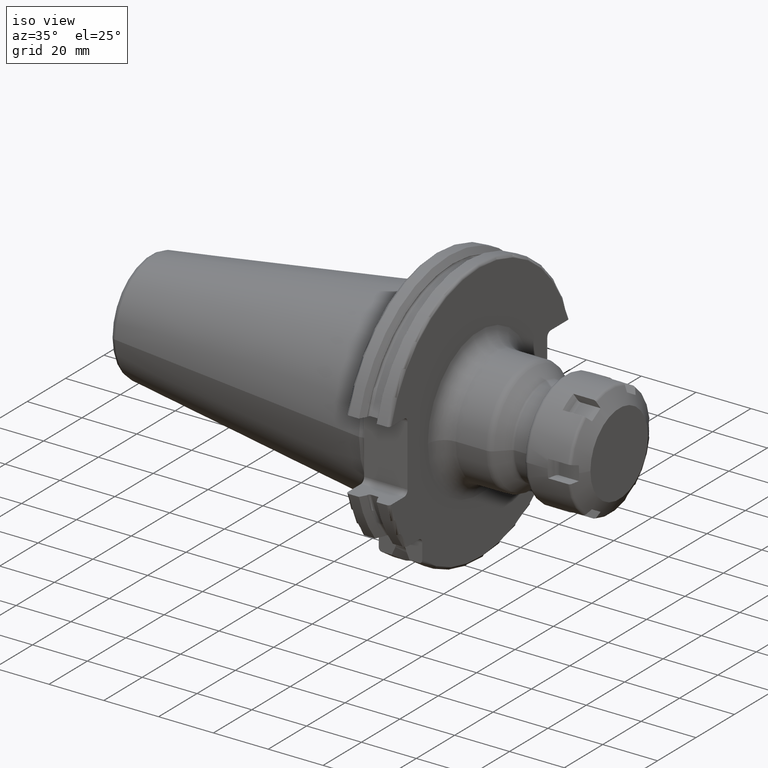
[diagram: clean part render]
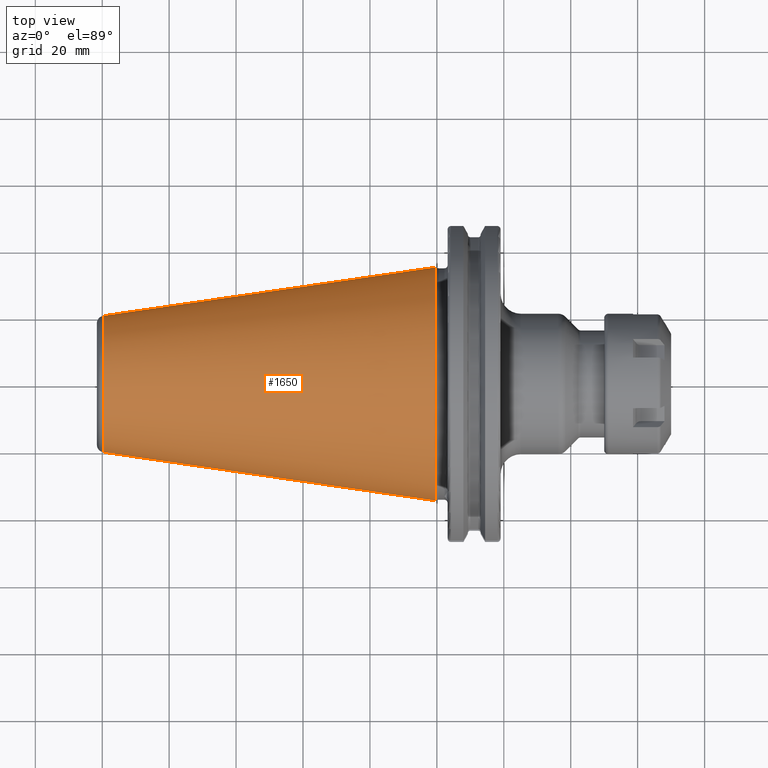
[diagram: tour spotlight — one face highlighted and labeled with its STEP entity id]
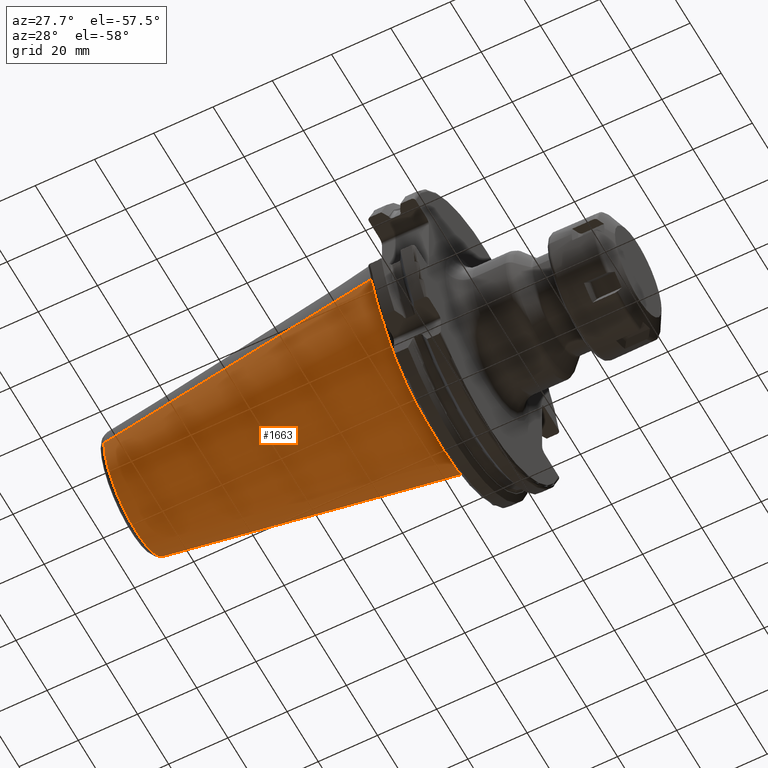
[diagram: tour spotlight — one face highlighted and labeled with its STEP entity id]
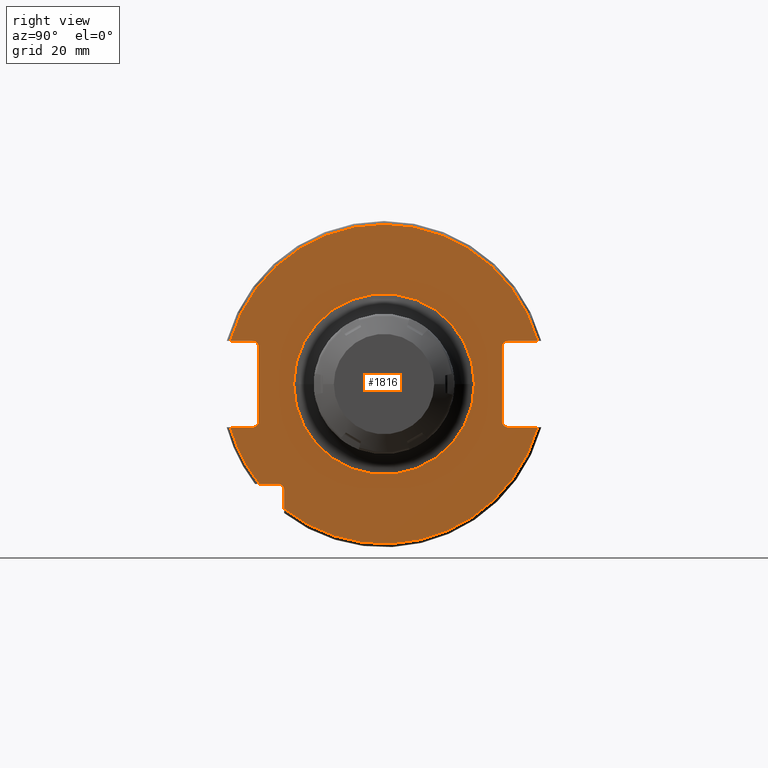
[diagram: tour spotlight — one face highlighted and labeled with its STEP entity id]
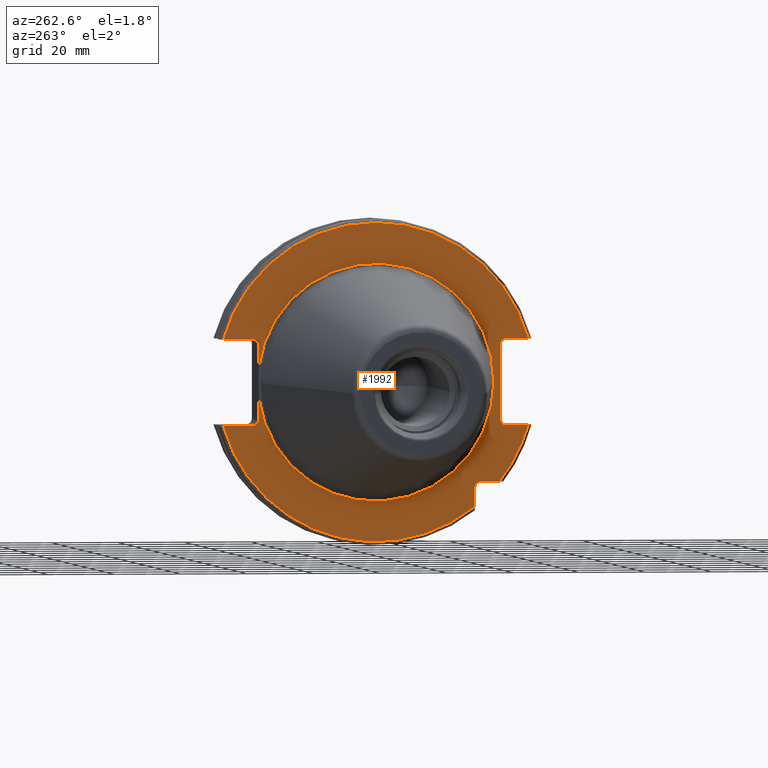
[diagram: tour spotlight — one face highlighted and labeled with its STEP entity id]
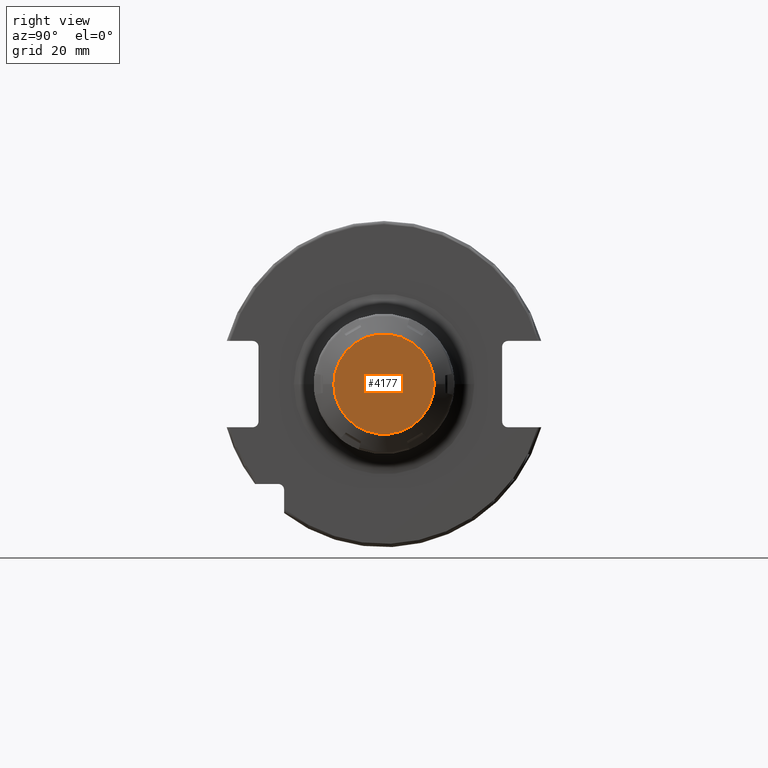
[diagram: tour spotlight — one face highlighted and labeled with its STEP entity id]
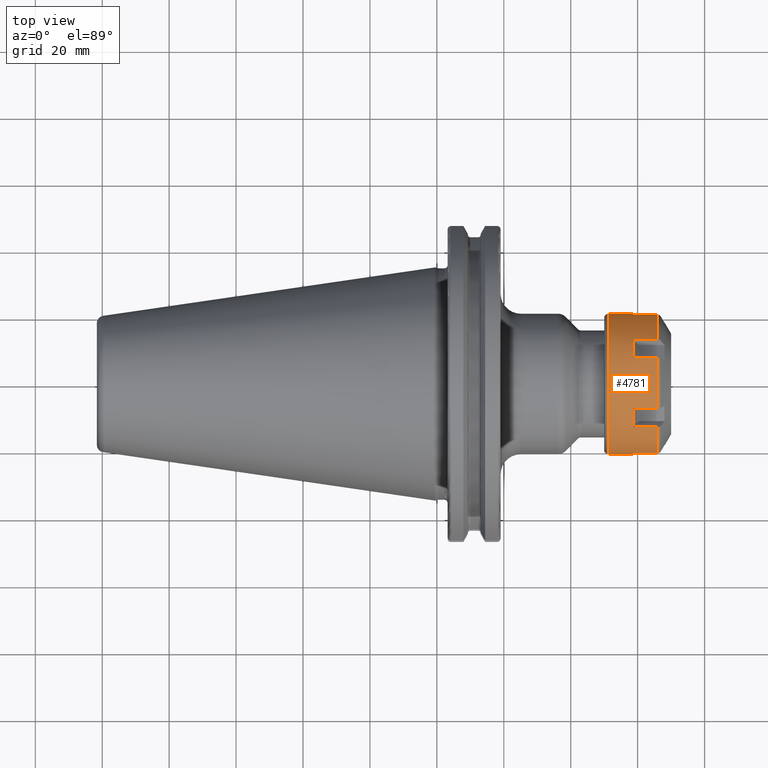
[diagram: tour spotlight — one face highlighted and labeled with its STEP entity id]
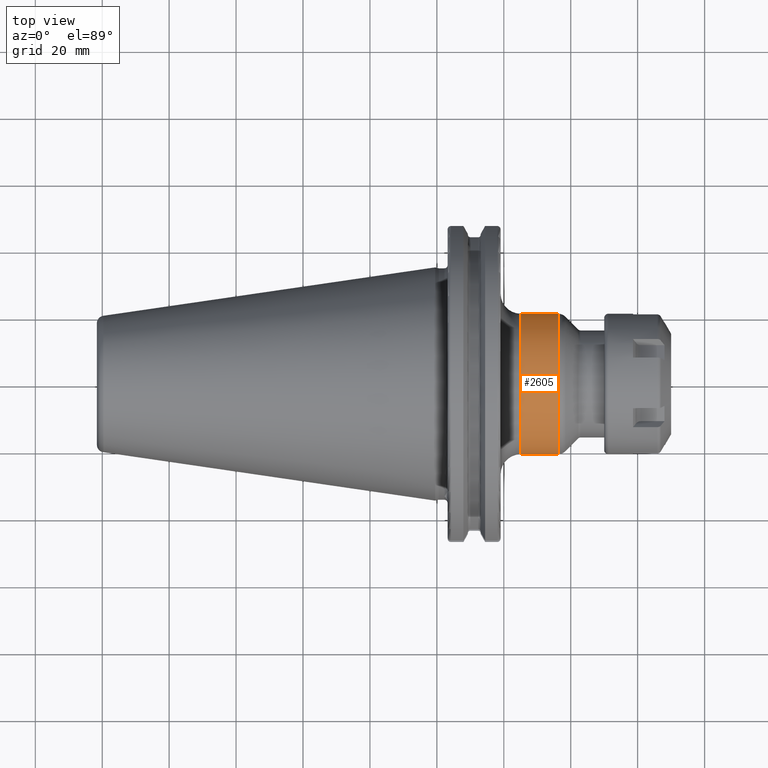
[diagram: tour spotlight — one face highlighted and labeled with its STEP entity id]
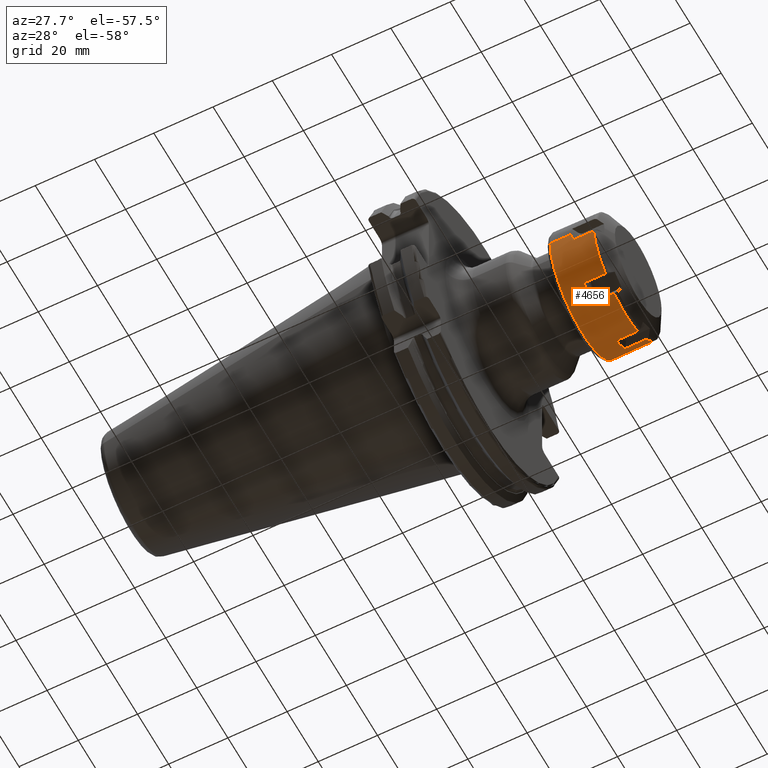
[diagram: tour spotlight — one face highlighted and labeled with its STEP entity id]
A machine part: a face-by-face anatomy tour. The part has 147 B-rep faces; the first image is the clean iso view, then the 8 largest visible faces are spotlighted one at a time (largest first), each with its STEP entity span.

Face 1 — top view, entity #1650. In plain terms, the highlighted conical surface has half-angle 8.298 deg.
Definition (entity closure, byte-faithful):
#37=CARTESIAN_POINT('',(-9.967471700563E1,0.E0,0.E0));
#38=DIRECTION('',(1.E0,0.E0,0.E0));
#39=DIRECTION('',(0.E0,1.E0,0.E0));
#40=AXIS2_PLACEMENT_3D('',#37,#38,#39);
#42=CARTESIAN_POINT('',(-4.896823332305E-1,0.E0,0.E0));
#43=DIRECTION('',(1.E0,0.E0,0.E0));
#44=DIRECTION('',(0.E0,1.E0,0.E0));
#45=AXIS2_PLACEMENT_3D('',#42,#43,#44);
#47=DIRECTION('',(-9.895312636440E-1,-1.443186691705E-1,0.E0));
#48=VECTOR('',#47,1.002343617797E2);
#49=CARTESIAN_POINT('',(-4.896823332305E-1,3.485358204157E1,0.E0));
#50=LINE('',#49,#48);
#51=DIRECTION('',(-9.895312636440E-1,1.443186691705E-1,0.E0));
#52=VECTOR('',#51,1.002343617797E2);
#53=CARTESIAN_POINT('',(-4.896823332305E-1,-3.485358204157E1,0.E0));
#54=LINE('',#53,#52);
#1318=CARTESIAN_POINT('',(-9.967471700563E1,2.038789234437E1,0.E0));
#1320=VERTEX_POINT('',#1318);
#1322=CARTESIAN_POINT('',(-9.967471700563E1,-2.038789234437E1,0.E0));
#1324=VERTEX_POINT('',#1322);
#1386=CARTESIAN_POINT('',(-4.896823332305E-1,3.485358204157E1,0.E0));
#1387=VERTEX_POINT('',#1386);
#1388=CARTESIAN_POINT('',(-4.896823332305E-1,-3.485358204157E1,0.E0));
#1389=VERTEX_POINT('',#1388);
#1636=CARTESIAN_POINT('',(-5.008219966943E1,0.E0,0.E0));
#1637=DIRECTION('',(1.E0,0.E0,0.E0));
#1638=DIRECTION('',(0.E0,-1.E0,0.E0));
#1639=AXIS2_PLACEMENT_3D('',#1636,#1637,#1638);
#1640=CONICAL_SURFACE('',#1639,2.762073719297E1,8.297826828206E0);
#1642=ORIENTED_EDGE('',*,*,#1641,.F.);
#1644=ORIENTED_EDGE('',*,*,#1643,.T.);
#1646=ORIENTED_EDGE('',*,*,#1645,.T.);
#1647=ORIENTED_EDGE('',*,*,#1629,.F.);
#1648=EDGE_LOOP('',(#1642,#1644,#1646,#1647));
#1649=FACE_OUTER_BOUND('',#1648,.F.);
#1650=ADVANCED_FACE('',(#1649),#1640,.T.);
#41=CIRCLE('',#40,2.038789234437E1);
#46=CIRCLE('',#45,3.485358204157E1);
#1629=EDGE_CURVE('',#1320,#1324,#41,.T.);
#1641=EDGE_CURVE('',#1387,#1320,#50,.T.);
#1643=EDGE_CURVE('',#1387,#1389,#46,.T.);
#1645=EDGE_CURVE('',#1389,#1324,#54,.T.);

Face 2 — auxiliary view, entity #1663. In plain terms, the highlighted conical surface has half-angle 8.298 deg.
Definition (entity closure, byte-faithful):
#32=CARTESIAN_POINT('',(-9.967471700563E1,0.E0,0.E0));
#33=DIRECTION('',(-1.E0,0.E0,0.E0));
#34=DIRECTION('',(0.E0,1.E0,0.E0));
#35=AXIS2_PLACEMENT_3D('',#32,#33,#34);
#47=DIRECTION('',(-9.895312636440E-1,-1.443186691705E-1,0.E0));
#48=VECTOR('',#47,1.002343617797E2);
#49=CARTESIAN_POINT('',(-4.896823332305E-1,3.485358204157E1,0.E0));
#50=LINE('',#49,#48);
#51=DIRECTION('',(-9.895312636440E-1,1.443186691705E-1,0.E0));
#52=VECTOR('',#51,1.002343617797E2);
#53=CARTESIAN_POINT('',(-4.896823332305E-1,-3.485358204157E1,0.E0));
#54=LINE('',#53,#52);
#55=CARTESIAN_POINT('',(-4.896823332305E-1,0.E0,0.E0));
#56=DIRECTION('',(-1.E0,0.E0,0.E0));
#57=DIRECTION('',(0.E0,1.E0,0.E0));
#58=AXIS2_PLACEMENT_3D('',#55,#56,#57);
#1318=CARTESIAN_POINT('',(-9.967471700563E1,2.038789234437E1,0.E0));
#1320=VERTEX_POINT('',#1318);
#1322=CARTESIAN_POINT('',(-9.967471700563E1,-2.038789234437E1,0.E0));
#1324=VERTEX_POINT('',#1322);
#1386=CARTESIAN_POINT('',(-4.896823332305E-1,3.485358204157E1,0.E0));
#1387=VERTEX_POINT('',#1386);
#1388=CARTESIAN_POINT('',(-4.896823332305E-1,-3.485358204157E1,0.E0));
#1389=VERTEX_POINT('',#1388);
#1651=CARTESIAN_POINT('',(-5.008219966943E1,0.E0,0.E0));
#1652=DIRECTION('',(1.E0,0.E0,0.E0));
#1653=DIRECTION('',(0.E0,-1.E0,0.E0));
#1654=AXIS2_PLACEMENT_3D('',#1651,#1652,#1653);
#1655=CONICAL_SURFACE('',#1654,2.762073719297E1,8.297826828206E0);
#1656=ORIENTED_EDGE('',*,*,#1641,.T.);
#1657=ORIENTED_EDGE('',*,*,#1618,.T.);
#1658=ORIENTED_EDGE('',*,*,#1645,.F.);
#1660=ORIENTED_EDGE('',*,*,#1659,.F.);
#1661=EDGE_LOOP('',(#1656,#1657,#1658,#1660));
#1662=FACE_OUTER_BOUND('',#1661,.F.);
#1663=ADVANCED_FACE('',(#1662),#1655,.T.);
#36=CIRCLE('',#35,2.038789234437E1);
#59=CIRCLE('',#58,3.485358204157E1);
#1618=EDGE_CURVE('',#1320,#1324,#36,.T.);
#1641=EDGE_CURVE('',#1387,#1320,#50,.T.);
#1645=EDGE_CURVE('',#1389,#1324,#54,.T.);
#1659=EDGE_CURVE('',#1387,#1389,#59,.T.);

Face 3 — right view, entity #1816. In plain terms, the highlighted planar face has unit normal (1, 0, 0).
Definition (entity closure, byte-faithful):
#130=CARTESIAN_POINT('',(1.905E1,3.705E1,1.115E1));
#131=DIRECTION('',(-1.E0,0.E0,0.E0));
#132=DIRECTION('',(0.E0,-1.E0,0.E0));
#133=AXIS2_PLACEMENT_3D('',#130,#131,#132);
#140=DIRECTION('',(0.E0,0.E0,1.E0));
#141=VECTOR('',#140,2.23E1);
#142=CARTESIAN_POINT('',(1.905E1,-3.75E1,-1.115E1));
#143=LINE('',#142,#141);
#144=DIRECTION('',(0.E0,1.E0,0.E0));
#145=VECTOR('',#144,6.711493733886E0);
#146=CARTESIAN_POINT('',(1.905E1,-4.596149373389E1,1.29E1));
#147=LINE('',#146,#145);
#148=DIRECTION('',(0.E0,-1.E0,0.E0));
#149=VECTOR('',#148,8.911493733886E0);
#150=CARTESIAN_POINT('',(1.905E1,4.596149373389E1,1.29E1));
#151=LINE('',#150,#149);
#152=DIRECTION('',(0.E0,0.E0,-1.E0));
#153=VECTOR('',#152,2.23E1);
#154=CARTESIAN_POINT('',(1.905E1,3.53E1,1.115E1));
#155=LINE('',#154,#153);
#156=DIRECTION('',(0.E0,-1.E0,0.E0));
#157=VECTOR('',#156,8.911493733886E0);
#158=CARTESIAN_POINT('',(1.905E1,4.596149373389E1,-1.29E1));
#159=LINE('',#158,#157);
#160=DIRECTION('',(0.E0,0.E0,1.E0));
#161=VECTOR('',#160,5.653810627237E0);
#162=CARTESIAN_POINT('',(1.905E1,-2.985E1,-3.725381062724E1));
#163=LINE('',#162,#161);
#164=DIRECTION('',(0.E0,-1.E0,0.E0));
#165=VECTOR('',#164,5.653810627237E0);
#166=CARTESIAN_POINT('',(1.905E1,-3.16E1,-2.985E1));
#167=LINE('',#166,#165);
#168=DIRECTION('',(0.E0,1.E0,0.E0));
#169=VECTOR('',#168,6.711493733886E0);
#170=CARTESIAN_POINT('',(1.905E1,-4.596149373389E1,-1.29E1));
#171=LINE('',#170,#169);
#172=CARTESIAN_POINT('',(1.905E1,0.E0,0.E0));
#173=DIRECTION('',(1.E0,0.E0,0.E0));
#174=DIRECTION('',(0.E0,-1.E0,0.E0));
#175=AXIS2_PLACEMENT_3D('',#172,#173,#174);
#177=CARTESIAN_POINT('',(1.905E1,0.E0,0.E0));
#178=DIRECTION('',(1.E0,0.E0,0.E0));
#179=DIRECTION('',(0.E0,1.E0,0.E0));
#180=AXIS2_PLACEMENT_3D('',#177,#178,#179);
#190=CARTESIAN_POINT('',(1.905E1,-3.925E1,-1.115E1));
#191=DIRECTION('',(-1.E0,0.E0,0.E0));
#192=DIRECTION('',(0.E0,1.E0,0.E0));
#193=AXIS2_PLACEMENT_3D('',#190,#191,#192);
#213=CARTESIAN_POINT('',(1.905E1,4.596149373389E1,-1.29E1));
#225=CARTESIAN_POINT('',(1.905E1,0.E0,0.E0));
#226=DIRECTION('',(-1.E0,0.E0,0.E0));
#227=DIRECTION('',(0.E0,9.627964123359E-1,-2.702278083268E-1));
#228=AXIS2_PLACEMENT_3D('',#225,#226,#227);
#230=CARTESIAN_POINT('',(1.905E1,-4.596149373389E1,-1.29E1));
#241=CARTESIAN_POINT('',(1.905E1,0.E0,0.E0));
#242=DIRECTION('',(-1.E0,0.E0,0.E0));
#243=DIRECTION('',(0.E0,-7.803888060170E-1,-6.252945797329E-1));
#244=AXIS2_PLACEMENT_3D('',#241,#242,#243);
#255=CARTESIAN_POINT('',(1.905E1,-3.725381062724E1,-2.985E1));
#261=CARTESIAN_POINT('',(1.905E1,3.705E1,-1.115E1));
#262=DIRECTION('',(-1.E0,0.E0,0.E0));
#263=DIRECTION('',(0.E0,0.E0,-1.E0));
#264=AXIS2_PLACEMENT_3D('',#261,#262,#263);
#326=CARTESIAN_POINT('',(1.905E1,-3.925E1,1.115E1));
#327=DIRECTION('',(-1.E0,0.E0,0.E0));
#328=DIRECTION('',(0.E0,0.E0,1.E0));
#329=AXIS2_PLACEMENT_3D('',#326,#327,#328);
#367=CARTESIAN_POINT('',(1.905E1,4.596149373389E1,1.29E1));
#378=CARTESIAN_POINT('',(1.905E1,0.E0,0.E0));
#379=DIRECTION('',(1.E0,0.E0,0.E0));
#380=DIRECTION('',(0.E0,9.627964123359E-1,2.702278083268E-1));
#381=AXIS2_PLACEMENT_3D('',#378,#379,#380);
#392=CARTESIAN_POINT('',(1.905E1,-4.596149373389E1,1.29E1));
#741=CARTESIAN_POINT('',(1.905E1,-3.16E1,-3.16E1));
#742=DIRECTION('',(-1.E0,0.E0,0.E0));
#743=DIRECTION('',(0.E0,0.E0,1.E0));
#744=AXIS2_PLACEMENT_3D('',#741,#742,#743);
#1459=VERTEX_POINT('',#367);
#1460=VERTEX_POINT('',#392);
#1463=VERTEX_POINT('',#213);
#1464=VERTEX_POINT('',#230);
#1483=CARTESIAN_POINT('',(1.905E1,-2.985E1,-3.725381062724E1));
#1484=VERTEX_POINT('',#1483);
#1491=CARTESIAN_POINT('',(1.905E1,-3.75E1,-1.115E1));
#1493=VERTEX_POINT('',#1491);
#1495=CARTESIAN_POINT('',(1.905E1,-3.925E1,-1.29E1));
#1497=VERTEX_POINT('',#1495);
#1499=CARTESIAN_POINT('',(1.905E1,-3.925E1,1.29E1));
#1501=VERTEX_POINT('',#1499);
#1503=CARTESIAN_POINT('',(1.905E1,-3.75E1,1.115E1));
#1505=VERTEX_POINT('',#1503);
#1507=CARTESIAN_POINT('',(1.905E1,3.53E1,1.115E1));
#1509=VERTEX_POINT('',#1507);
#1511=CARTESIAN_POINT('',(1.905E1,3.705E1,1.29E1));
#1513=VERTEX_POINT('',#1511);
#1515=CARTESIAN_POINT('',(1.905E1,3.705E1,-1.29E1));
#1517=VERTEX_POINT('',#1515);
#1519=CARTESIAN_POINT('',(1.905E1,3.53E1,-1.115E1));
#1521=VERTEX_POINT('',#1519);
#1523=CARTESIAN_POINT('',(1.905E1,-3.16E1,-2.985E1));
#1524=CARTESIAN_POINT('',(1.905E1,-2.985E1,-3.16E1));
#1525=VERTEX_POINT('',#1523);
#1526=VERTEX_POINT('',#1524);
#1547=CARTESIAN_POINT('',(1.905E1,-2.7E1,0.E0));
#1548=CARTESIAN_POINT('',(1.905E1,2.7E1,0.E0));
#1549=VERTEX_POINT('',#1547);
#1550=VERTEX_POINT('',#1548);
#1588=VERTEX_POINT('',#255);
#1773=CARTESIAN_POINT('',(1.905E1,0.E0,0.E0));
#1774=DIRECTION('',(1.E0,0.E0,0.E0));
#1775=DIRECTION('',(0.E0,-1.E0,0.E0));
#1776=AXIS2_PLACEMENT_3D('',#1773,#1774,#1775);
#1777=PLANE('',#1776);
#1779=ORIENTED_EDGE('',*,*,#1778,.T.);
#1781=ORIENTED_EDGE('',*,*,#1780,.F.);
#1783=ORIENTED_EDGE('',*,*,#1782,.F.);
#1785=ORIENTED_EDGE('',*,*,#1784,.F.);
#1787=ORIENTED_EDGE('',*,*,#1786,.T.);
#1788=ORIENTED_EDGE('',*,*,#1764,.F.);
#1789=ORIENTED_EDGE('',*,*,#1753,.T.);
#1791=ORIENTED_EDGE('',*,*,#1790,.F.);
#1793=ORIENTED_EDGE('',*,*,#1792,.F.);
#1795=ORIENTED_EDGE('',*,*,#1794,.T.);
#1797=ORIENTED_EDGE('',*,*,#1796,.T.);
#1799=ORIENTED_EDGE('',*,*,#1798,.F.);
#1801=ORIENTED_EDGE('',*,*,#1800,.T.);
#1803=ORIENTED_EDGE('',*,*,#1802,.T.);
#1805=ORIENTED_EDGE('',*,*,#1804,.T.);
#1807=ORIENTED_EDGE('',*,*,#1806,.F.);
#1808=EDGE_LOOP('',(#1779,#1781,#1783,#1785,#1787,#1788,#1789,#1791,#1793,#1795,
#1797,#1799,#1801,#1803,#1805,#1807));
#1809=FACE_OUTER_BOUND('',#1808,.F.);
#1811=ORIENTED_EDGE('',*,*,#1810,.T.);
#1813=ORIENTED_EDGE('',*,*,#1812,.T.);
#1814=EDGE_LOOP('',(#1811,#1813));
#1815=FACE_BOUND('',#1814,.F.);
#1816=ADVANCED_FACE('',(#1809,#1815),#1777,.T.);
#134=CIRCLE('',#133,1.75E0);
#176=CIRCLE('',#175,2.7E1);
#181=CIRCLE('',#180,2.7E1);
#194=CIRCLE('',#193,1.75E0);
#229=CIRCLE('',#228,4.77375E1);
#245=CIRCLE('',#244,4.77375E1);
#265=CIRCLE('',#264,1.75E0);
#330=CIRCLE('',#329,1.75E0);
#382=CIRCLE('',#381,4.77375E1);
#745=CIRCLE('',#744,1.75E0);
#1753=EDGE_CURVE('',#1509,#1521,#155,.T.);
#1764=EDGE_CURVE('',#1509,#1513,#134,.T.);
#1778=EDGE_CURVE('',#1493,#1505,#143,.T.);
#1780=EDGE_CURVE('',#1501,#1505,#330,.T.);
#1782=EDGE_CURVE('',#1460,#1501,#147,.T.);
#1784=EDGE_CURVE('',#1459,#1460,#382,.T.);
#1786=EDGE_CURVE('',#1459,#1513,#151,.T.);
#1790=EDGE_CURVE('',#1517,#1521,#265,.T.);
#1792=EDGE_CURVE('',#1463,#1517,#159,.T.);
#1794=EDGE_CURVE('',#1463,#1484,#229,.T.);
#1796=EDGE_CURVE('',#1484,#1526,#163,.T.);
#1798=EDGE_CURVE('',#1525,#1526,#745,.T.);
#1800=EDGE_CURVE('',#1525,#1588,#167,.T.);
#1802=EDGE_CURVE('',#1588,#1464,#245,.T.);
#1804=EDGE_CURVE('',#1464,#1497,#171,.T.);
#1806=EDGE_CURVE('',#1493,#1497,#194,.T.);
#1810=EDGE_CURVE('',#1549,#1550,#176,.T.);
#1812=EDGE_CURVE('',#1550,#1549,#181,.T.);

Face 4 — auxiliary view, entity #1992. In plain terms, the highlighted planar face has unit normal (1, 0, 0).
Definition (entity closure, byte-faithful):
#105=CARTESIAN_POINT('',(3.2E0,3.53E1,-4.414818795828E0));
#117=CARTESIAN_POINT('',(3.2E0,0.E0,0.E0));
#118=DIRECTION('',(-1.E0,0.E0,0.E0));
#119=DIRECTION('',(0.E0,9.922698524245E-1,-1.240989120402E-1));
#120=AXIS2_PLACEMENT_3D('',#117,#118,#119);
#135=CARTESIAN_POINT('',(3.2E0,3.705E1,1.115E1));
#136=DIRECTION('',(1.E0,0.E0,0.E0));
#137=DIRECTION('',(0.E0,0.E0,1.E0));
#138=AXIS2_PLACEMENT_3D('',#135,#136,#137);
#195=CARTESIAN_POINT('',(3.2E0,-3.925E1,-1.115E1));
#196=DIRECTION('',(1.E0,0.E0,0.E0));
#197=DIRECTION('',(0.E0,0.E0,-1.E0));
#198=AXIS2_PLACEMENT_3D('',#195,#196,#197);
#266=CARTESIAN_POINT('',(3.2E0,3.705E1,-1.115E1));
#267=DIRECTION('',(1.E0,0.E0,0.E0));
#268=DIRECTION('',(0.E0,-1.E0,0.E0));
#269=AXIS2_PLACEMENT_3D('',#266,#267,#268);
#271=DIRECTION('',(0.E0,1.E0,0.E0));
#272=VECTOR('',#271,6.711493733886E0);
#273=CARTESIAN_POINT('',(3.2E0,-4.596149373389E1,1.29E1));
#274=LINE('',#273,#272);
#275=DIRECTION('',(0.E0,0.E0,1.E0));
#276=VECTOR('',#275,2.23E1);
#277=CARTESIAN_POINT('',(3.2E0,-3.75E1,-1.115E1));
#278=LINE('',#277,#276);
#279=DIRECTION('',(0.E0,1.E0,0.E0));
#280=VECTOR('',#279,6.711493733886E0);
#281=CARTESIAN_POINT('',(3.2E0,-4.596149373389E1,-1.29E1));
#282=LINE('',#281,#280);
#283=CARTESIAN_POINT('',(3.2E0,0.E0,0.E0));
#284=DIRECTION('',(-1.E0,0.E0,0.E0));
#285=DIRECTION('',(0.E0,-7.803888060170E-1,-6.252945797329E-1));
#286=AXIS2_PLACEMENT_3D('',#283,#284,#285);
#288=DIRECTION('',(0.E0,-1.E0,0.E0));
#289=VECTOR('',#288,5.653810627237E0);
#290=CARTESIAN_POINT('',(3.2E0,-3.16E1,-2.985E1));
#291=LINE('',#290,#289);
#292=DIRECTION('',(0.E0,0.E0,1.E0));
#293=VECTOR('',#292,5.653810627237E0);
#294=CARTESIAN_POINT('',(3.2E0,-2.985E1,-3.725381062724E1));
#295=LINE('',#294,#293);
#296=CARTESIAN_POINT('',(3.2E0,0.E0,0.E0));
#297=DIRECTION('',(-1.E0,0.E0,0.E0));
#298=DIRECTION('',(0.E0,9.627964123359E-1,-2.702278083268E-1));
#299=AXIS2_PLACEMENT_3D('',#296,#297,#298);
#301=DIRECTION('',(0.E0,-1.E0,0.E0));
#302=VECTOR('',#301,8.911493733886E0);
#303=CARTESIAN_POINT('',(3.2E0,4.596149373389E1,-1.29E1));
#304=LINE('',#303,#302);
#305=DIRECTION('',(0.E0,0.E0,-1.E0));
#306=VECTOR('',#305,6.735181204172E0);
#307=CARTESIAN_POINT('',(3.2E0,3.53E1,-4.414818795828E0));
#308=LINE('',#307,#306);
#309=DIRECTION('',(0.E0,0.E0,-1.E0));
#310=VECTOR('',#309,6.735181204172E0);
#311=CARTESIAN_POINT('',(3.2E0,3.53E1,1.115E1));
#312=LINE('',#311,#310);
#313=DIRECTION('',(0.E0,-1.E0,0.E0));
#314=VECTOR('',#313,8.911493733886E0);
#315=CARTESIAN_POINT('',(3.2E0,4.596149373389E1,1.29E1));
#316=LINE('',#315,#314);
#317=CARTESIAN_POINT('',(3.2E0,0.E0,0.E0));
#318=DIRECTION('',(1.E0,0.E0,0.E0));
#319=DIRECTION('',(0.E0,9.627964123359E-1,2.702278083268E-1));
#320=AXIS2_PLACEMENT_3D('',#317,#318,#319);
#331=CARTESIAN_POINT('',(3.2E0,-3.925E1,1.115E1));
#332=DIRECTION('',(1.E0,0.E0,0.E0));
#333=DIRECTION('',(0.E0,1.E0,0.E0));
#334=AXIS2_PLACEMENT_3D('',#331,#332,#333);
#345=CARTESIAN_POINT('',(3.2E0,4.596149373389E1,1.29E1));
#352=CARTESIAN_POINT('',(3.2E0,-4.596149373389E1,1.29E1));
#746=CARTESIAN_POINT('',(3.2E0,-3.16E1,-3.16E1));
#747=DIRECTION('',(1.E0,0.E0,0.E0));
#748=DIRECTION('',(0.E0,1.E0,0.E0));
#749=AXIS2_PLACEMENT_3D('',#746,#747,#748);
#755=CARTESIAN_POINT('',(3.2E0,4.596149373389E1,-1.29E1));
#790=CARTESIAN_POINT('',(3.2E0,-4.596149373389E1,-1.29E1));
#797=CARTESIAN_POINT('',(3.2E0,-3.725381062724E1,-2.985E1));
#936=CARTESIAN_POINT('',(3.2E0,3.53E1,4.414818795828E0));
#947=CARTESIAN_POINT('',(3.2E0,0.E0,0.E0));
#948=DIRECTION('',(1.E0,0.E0,0.E0));
#949=DIRECTION('',(0.E0,9.922698524245E-1,1.240989120402E-1));
#950=AXIS2_PLACEMENT_3D('',#947,#948,#949);
#1330=CARTESIAN_POINT('',(3.2E0,-3.5575E1,0.E0));
#1332=VERTEX_POINT('',#1330);
#1456=VERTEX_POINT('',#936);
#1458=VERTEX_POINT('',#105);
#1461=VERTEX_POINT('',#345);
#1462=VERTEX_POINT('',#352);
#1465=VERTEX_POINT('',#755);
#1466=VERTEX_POINT('',#790);
#1489=CARTESIAN_POINT('',(3.2E0,-2.985E1,-3.725381062724E1));
#1490=VERTEX_POINT('',#1489);
#1492=CARTESIAN_POINT('',(3.2E0,-3.75E1,-1.115E1));
#1494=VERTEX_POINT('',#1492);
#1496=CARTESIAN_POINT('',(3.2E0,-3.925E1,-1.29E1));
#1498=VERTEX_POINT('',#1496);
#1500=CARTESIAN_POINT('',(3.2E0,-3.925E1,1.29E1));
#1502=VERTEX_POINT('',#1500);
#1504=CARTESIAN_POINT('',(3.2E0,-3.75E1,1.115E1));
#1506=VERTEX_POINT('',#1504);
#1508=CARTESIAN_POINT('',(3.2E0,3.53E1,1.115E1));
#1510=VERTEX_POINT('',#1508);
#1512=CARTESIAN_POINT('',(3.2E0,3.705E1,1.29E1));
#1514=VERTEX_POINT('',#1512);
#1516=CARTESIAN_POINT('',(3.2E0,3.705E1,-1.29E1));
#1518=VERTEX_POINT('',#1516);
#1520=CARTESIAN_POINT('',(3.2E0,3.53E1,-1.115E1));
#1522=VERTEX_POINT('',#1520);
#1527=CARTESIAN_POINT('',(3.2E0,-2.985E1,-3.16E1));
#1528=CARTESIAN_POINT('',(3.2E0,-3.16E1,-2.985E1));
#1529=VERTEX_POINT('',#1527);
#1530=VERTEX_POINT('',#1528);
#1589=VERTEX_POINT('',#797);
#1956=CARTESIAN_POINT('',(3.2E0,0.E0,0.E0));
#1957=DIRECTION('',(1.E0,0.E0,0.E0));
#1958=DIRECTION('',(0.E0,-1.E0,0.E0));
#1959=AXIS2_PLACEMENT_3D('',#1956,#1957,#1958);
#1960=PLANE('',#1959);
#1962=ORIENTED_EDGE('',*,*,#1961,.T.);
#1964=ORIENTED_EDGE('',*,*,#1963,.F.);
#1965=ORIENTED_EDGE('',*,*,#1824,.F.);
#1966=ORIENTED_EDGE('',*,*,#1841,.F.);
#1967=ORIENTED_EDGE('',*,*,#1875,.F.);
#1969=ORIENTED_EDGE('',*,*,#1968,.F.);
#1971=ORIENTED_EDGE('',*,*,#1970,.F.);
#1973=ORIENTED_EDGE('',*,*,#1972,.F.);
#1975=ORIENTED_EDGE('',*,*,#1974,.F.);
#1977=ORIENTED_EDGE('',*,*,#1976,.F.);
#1978=ORIENTED_EDGE('',*,*,#1916,.T.);
#1979=ORIENTED_EDGE('',*,*,#1951,.F.);
#1980=ORIENTED_EDGE('',*,*,#1749,.F.);
#1981=ORIENTED_EDGE('',*,*,#1732,.T.);
#1983=ORIENTED_EDGE('',*,*,#1982,.F.);
#1984=ORIENTED_EDGE('',*,*,#1744,.F.);
#1985=ORIENTED_EDGE('',*,*,#1768,.F.);
#1987=ORIENTED_EDGE('',*,*,#1986,.F.);
#1989=ORIENTED_EDGE('',*,*,#1988,.T.);
#1990=EDGE_LOOP('',(#1962,#1964,#1965,#1966,#1967,#1969,#1971,#1973,#1975,#1977,
#1978,#1979,#1980,#1981,#1983,#1984,#1985,#1987,#1989));
#1991=FACE_OUTER_BOUND('',#1990,.F.);
#1992=ADVANCED_FACE('',(#1991),#1960,.F.);
#121=CIRCLE('',#120,3.5575E1);
#139=CIRCLE('',#138,1.75E0);
#199=CIRCLE('',#198,1.75E0);
#270=CIRCLE('',#269,1.75E0);
#287=CIRCLE('',#286,4.77375E1);
#300=CIRCLE('',#299,4.77375E1);
#321=CIRCLE('',#320,4.77375E1);
#335=CIRCLE('',#334,1.75E0);
#750=CIRCLE('',#749,1.75E0);
#951=CIRCLE('',#950,3.5575E1);
#1732=EDGE_CURVE('',#1458,#1332,#121,.T.);
#1744=EDGE_CURVE('',#1510,#1456,#312,.T.);
#1749=EDGE_CURVE('',#1458,#1522,#308,.T.);
#1768=EDGE_CURVE('',#1514,#1510,#139,.T.);
#1824=EDGE_CURVE('',#1494,#1506,#278,.T.);
#1841=EDGE_CURVE('',#1498,#1494,#199,.T.);
#1875=EDGE_CURVE('',#1466,#1498,#282,.T.);
#1916=EDGE_CURVE('',#1465,#1518,#304,.T.);
#1951=EDGE_CURVE('',#1522,#1518,#270,.T.);
#1961=EDGE_CURVE('',#1462,#1502,#274,.T.);
#1963=EDGE_CURVE('',#1506,#1502,#335,.T.);
#1968=EDGE_CURVE('',#1589,#1466,#287,.T.);
#1970=EDGE_CURVE('',#1530,#1589,#291,.T.);
#1972=EDGE_CURVE('',#1529,#1530,#750,.T.);
#1974=EDGE_CURVE('',#1490,#1529,#295,.T.);
#1976=EDGE_CURVE('',#1465,#1490,#300,.T.);
#1982=EDGE_CURVE('',#1456,#1332,#951,.T.);
#1986=EDGE_CURVE('',#1461,#1514,#316,.T.);
#1988=EDGE_CURVE('',#1461,#1462,#321,.T.);

Face 5 — right view, entity #4177. In plain terms, the highlighted planar face has unit normal (1, 0, 0).
Definition (entity closure, byte-faithful):
#3332=CARTESIAN_POINT('',(2.E1,-2.266909448450E-14,0.E0));
#3333=DIRECTION('',(-1.E0,0.E0,0.E0));
#3334=DIRECTION('',(0.E0,1.E0,0.E0));
#3335=AXIS2_PLACEMENT_3D('',#3332,#3333,#3334);
#3654=CARTESIAN_POINT('',(2.E1,-2.266909448450E-14,0.E0));
#3655=DIRECTION('',(1.E0,0.E0,0.E0));
#3656=DIRECTION('',(0.E0,1.E0,0.E0));
#3657=AXIS2_PLACEMENT_3D('',#3654,#3655,#3656);
#4064=CARTESIAN_POINT('',(2.E1,1.5E1,0.E0));
#4065=CARTESIAN_POINT('',(2.E1,-1.5E1,0.E0));
#4066=VERTEX_POINT('',#4064);
#4067=VERTEX_POINT('',#4065);
#4166=CARTESIAN_POINT('',(2.E1,-2.266909448450E-14,0.E0));
#4167=DIRECTION('',(1.E0,0.E0,0.E0));
#4168=DIRECTION('',(0.E0,-1.E0,0.E0));
#4169=AXIS2_PLACEMENT_3D('',#4166,#4167,#4168);
#4170=PLANE('',#4169);
#4172=ORIENTED_EDGE('',*,*,#4171,.T.);
#4174=ORIENTED_EDGE('',*,*,#4173,.F.);
#4175=EDGE_LOOP('',(#4172,#4174));
#4176=FACE_OUTER_BOUND('',#4175,.F.);
#4177=ADVANCED_FACE('',(#4176),#4170,.T.);
#3336=CIRCLE('',#3335,1.5E1);
#3658=CIRCLE('',#3657,1.5E1);
#4171=EDGE_CURVE('',#4066,#4067,#3336,.T.);
#4173=EDGE_CURVE('',#4066,#4067,#3658,.T.);

Face 6 — top view, entity #4781. In plain terms, the highlighted cylindrical surface (partial cylindrical patch) has radius 21 mm, axis along (1, 0, 0).
Definition (entity closure, byte-faithful):
#3415=CARTESIAN_POINT('',(1.581421054838E1,1.317189611779E1,1.635546247167E1));
#3432=CARTESIAN_POINT('',(1.581421054838E1,2.075019405E1,3.229465418179E0));
#3434=CARTESIAN_POINT('',(1.581421054838E1,-7.578297932215E0,1.958492788985E1));
#3454=CARTESIAN_POINT('',(1.581421054838E1,7.578297932215E0,1.958492788985E1));
#3456=CARTESIAN_POINT('',(1.581421054838E1,-2.075019405E1,3.229465418179E0));
#3476=CARTESIAN_POINT('',(1.581421054838E1,-1.317189611779E1,1.635546247167E1));
#3549=DIRECTION('',(9.999999999998E-1,-6.709444935676E-7,-9.098410445458E-8));
#3550=VECTOR('',#3549,7.214212575504E0);
#3551=CARTESIAN_POINT('',(8.599997972873E0,1.317190095812E1,1.635546312805E1));
#3552=LINE('',#3551,#3550);
#3565=DIRECTION('',(-1.E0,0.E0,0.E0));
#3566=VECTOR('',#3565,7.214210815093E0);
#3567=CARTESIAN_POINT('',(1.581421054838E1,7.578297932215E0,1.958492788985E1));
#3568=LINE('',#3567,#3566);
#3674=DIRECTION('',(1.E0,0.E0,0.E0));
#3675=VECTOR('',#3674,7.214210548375E0);
#3676=CARTESIAN_POINT('',(8.6E0,-2.075019405E1,3.229465418179E0));
#3677=LINE('',#3676,#3675);
#3715=DIRECTION('',(-1.E0,9.411549393136E-12,6.000804948597E-11));
#3716=VECTOR('',#3715,7.350000000040E0);
#3717=CARTESIAN_POINT('',(8.600000000040E0,2.099999999993E1,
-4.377820052165E-10));
#3718=LINE('',#3717,#3716);
#3724=DIRECTION('',(-1.E0,-9.436200875805E-12,-6.000654573246E-11));
#3725=VECTOR('',#3724,7.350000000040E0);
#3726=CARTESIAN_POINT('',(8.600000000040E0,-2.099999999993E1,
4.377679851591E-10));
#3727=LINE('',#3726,#3725);
#3795=DIRECTION('',(-1.E0,1.969841969528E-14,0.E0));
#3796=VECTOR('',#3795,7.214210548375E0);
#3797=CARTESIAN_POINT('',(1.581421054838E1,2.075019405E1,3.229465418179E0));
#3798=LINE('',#3797,#3796);
#3810=CARTESIAN_POINT('',(8.6E0,0.E0,0.E0));
#3811=DIRECTION('',(-1.E0,0.E0,0.E0));
#3812=DIRECTION('',(0.E0,-1.E0,0.E0));
#3813=AXIS2_PLACEMENT_3D('',#3810,#3811,#3812);
#3815=CARTESIAN_POINT('',(1.25E0,0.E0,0.E0));
#3816=DIRECTION('',(-1.E0,0.E0,0.E0));
#3817=DIRECTION('',(0.E0,-1.E0,0.E0));
#3818=AXIS2_PLACEMENT_3D('',#3815,#3816,#3817);
#3820=CARTESIAN_POINT('',(8.6E0,0.E0,0.E0));
#3821=DIRECTION('',(-1.E0,0.E0,0.E0));
#3822=DIRECTION('',(0.E0,9.881044785716E-1,1.537840675323E-1));
#3823=AXIS2_PLACEMENT_3D('',#3820,#3821,#3822);
#3825=CARTESIAN_POINT('',(1.581421054838E1,-1.792614389339E-14,0.E0));
#3826=DIRECTION('',(-1.E0,0.E0,0.E0));
#3827=DIRECTION('',(0.E0,6.272331484661E-1,7.788315462700E-1));
#3828=AXIS2_PLACEMENT_3D('',#3825,#3826,#3827);
#3830=CARTESIAN_POINT('',(1.581421054838E1,-1.792614389339E-14,0.E0));
#3831=DIRECTION('',(-1.E0,0.E0,0.E0));
#3832=DIRECTION('',(0.E0,-3.608713301055E-1,9.326156138023E-1));
#3833=AXIS2_PLACEMENT_3D('',#3830,#3831,#3832);
#3835=CARTESIAN_POINT('',(1.581421054838E1,-1.792614389339E-14,0.E0));
#3836=DIRECTION('',(-1.E0,0.E0,0.E0));
#3837=DIRECTION('',(0.E0,-9.881044785716E-1,1.537840675323E-1));
#3838=AXIS2_PLACEMENT_3D('',#3835,#3836,#3837);
#3914=CARTESIAN_POINT('',(8.600000222181E0,7.035000558750E-6,
1.879731957107E-6));
#3915=DIRECTION('',(-1.E0,0.E0,0.E0));
#3916=DIRECTION('',(0.E0,3.608710688571E-1,9.326157148911E-1));
#3917=AXIS2_PLACEMENT_3D('',#3914,#3915,#3916);
#3933=DIRECTION('',(9.999999999979E-1,-1.452794314702E-6,1.445246590338E-6));
#3934=VECTOR('',#3933,7.214202484701E0);
#3935=CARTESIAN_POINT('',(8.600008063689E0,-7.578287451463E0,1.958491746355E1));
#3936=LINE('',#3935,#3934);
#3949=DIRECTION('',(-1.E0,0.E0,0.E0));
#3950=VECTOR('',#3949,7.214210890546E0);
#3951=CARTESIAN_POINT('',(1.581421054838E1,-1.317189611779E1,1.635546247167E1));
#3952=LINE('',#3951,#3950);
#3985=CARTESIAN_POINT('',(8.600000318507E0,1.804967964893E-5,
-1.352930521446E-5));
#3986=DIRECTION('',(-1.E0,0.E0,0.E0));
#3987=DIRECTION('',(0.E0,-6.272333551021E-1,7.788313798553E-1));
#3988=AXIS2_PLACEMENT_3D('',#3985,#3986,#3987);
#4072=CARTESIAN_POINT('',(1.25E0,2.1E1,0.E0));
#4073=CARTESIAN_POINT('',(1.25E0,-2.1E1,0.E0));
#4074=VERTEX_POINT('',#4072);
#4075=VERTEX_POINT('',#4073);
#4081=VERTEX_POINT('',#3432);
#4083=CARTESIAN_POINT('',(8.6E0,2.1E1,0.E0));
#4085=VERTEX_POINT('',#4083);
#4087=CARTESIAN_POINT('',(8.6E0,2.075019405E1,3.229465418179E0));
#4088=VERTEX_POINT('',#4087);
#4097=VERTEX_POINT('',#3415);
#4098=VERTEX_POINT('',#3454);
#4099=CARTESIAN_POINT('',(8.600000222181E0,7.578297626635E0,1.958492710012E1));
#4100=CARTESIAN_POINT('',(8.600000222181E0,1.317189658068E1,1.635546304645E1));
#4101=VERTEX_POINT('',#4099);
#4102=VERTEX_POINT('',#4100);
#4111=VERTEX_POINT('',#3434);
#4112=VERTEX_POINT('',#3476);
#4113=CARTESIAN_POINT('',(8.600000318507E0,-1.317189540004E1,1.635546158045E1));
#4114=CARTESIAN_POINT('',(8.600000318507E0,-7.578298503418E0,1.958492936603E1));
#4115=VERTEX_POINT('',#4113);
#4116=VERTEX_POINT('',#4114);
#4126=VERTEX_POINT('',#3456);
#4128=CARTESIAN_POINT('',(8.6E0,-2.1E1,0.E0));
#4129=CARTESIAN_POINT('',(8.6E0,-2.075019405E1,3.229465418179E0));
#4130=VERTEX_POINT('',#4128);
#4131=VERTEX_POINT('',#4129);
#4751=CARTESIAN_POINT('',(-1.E0,0.E0,0.E0));
#4752=DIRECTION('',(1.E0,0.E0,0.E0));
#4753=DIRECTION('',(0.E0,-1.E0,0.E0));
#4754=AXIS2_PLACEMENT_3D('',#4751,#4752,#4753);
#4755=CYLINDRICAL_SURFACE('',#4754,2.1E1);
#4757=ORIENTED_EDGE('',*,*,#4756,.F.);
#4758=ORIENTED_EDGE('',*,*,#4640,.T.);
#4760=ORIENTED_EDGE('',*,*,#4759,.T.);
#4761=ORIENTED_EDGE('',*,*,#4636,.F.);
#4763=ORIENTED_EDGE('',*,*,#4762,.F.);
#4764=ORIENTED_EDGE('',*,*,#4731,.F.);
#4765=ORIENTED_EDGE('',*,*,#4328,.F.);
#4766=ORIENTED_EDGE('',*,*,#4421,.F.);
#4768=ORIENTED_EDGE('',*,*,#4767,.F.);
#4769=ORIENTED_EDGE('',*,*,#4489,.F.);
#4770=ORIENTED_EDGE('',*,*,#4344,.F.);
#4772=ORIENTED_EDGE('',*,*,#4771,.F.);
#4774=ORIENTED_EDGE('',*,*,#4773,.F.);
#4776=ORIENTED_EDGE('',*,*,#4775,.F.);
#4777=ORIENTED_EDGE('',*,*,#4360,.F.);
#4778=ORIENTED_EDGE('',*,*,#4549,.F.);
#4779=EDGE_LOOP('',(#4757,#4758,#4760,#4761,#4763,#4764,#4765,#4766,#4768,#4769,
#4770,#4772,#4774,#4776,#4777,#4778));
#4780=FACE_OUTER_BOUND('',#4779,.F.);
#4781=ADVANCED_FACE('',(#4780),#4755,.T.);
#3814=CIRCLE('',#3813,2.1E1);
#3819=CIRCLE('',#3818,2.1E1);
#3824=CIRCLE('',#3823,2.1E1);
#3829=CIRCLE('',#3828,2.1E1);
#3834=CIRCLE('',#3833,2.1E1);
#3839=CIRCLE('',#3838,2.1E1);
#3918=CIRCLE('',#3917,2.099999486142E1);
#3989=CIRCLE('',#3988,2.100002071410E1);
#4328=EDGE_CURVE('',#4097,#4081,#3829,.T.);
#4344=EDGE_CURVE('',#4111,#4098,#3834,.T.);
#4360=EDGE_CURVE('',#4126,#4112,#3839,.T.);
#4421=EDGE_CURVE('',#4102,#4097,#3552,.T.);
#4489=EDGE_CURVE('',#4098,#4101,#3568,.T.);
#4549=EDGE_CURVE('',#4131,#4126,#3677,.T.);
#4636=EDGE_CURVE('',#4085,#4074,#3718,.T.);
#4640=EDGE_CURVE('',#4130,#4075,#3727,.T.);
#4731=EDGE_CURVE('',#4081,#4088,#3798,.T.);
#4756=EDGE_CURVE('',#4130,#4131,#3814,.T.);
#4759=EDGE_CURVE('',#4075,#4074,#3819,.T.);
#4762=EDGE_CURVE('',#4088,#4085,#3824,.T.);
#4767=EDGE_CURVE('',#4101,#4102,#3918,.T.);
#4771=EDGE_CURVE('',#4116,#4111,#3936,.T.);
#4773=EDGE_CURVE('',#4115,#4116,#3989,.T.);
#4775=EDGE_CURVE('',#4112,#4115,#3952,.T.);

Face 7 — top view, entity #2605. In plain terms, the highlighted cylindrical surface (partial cylindrical patch) has radius 21 mm, axis along (1, 0, 0).
Definition (entity closure, byte-faithful):
#962=CARTESIAN_POINT('',(3.625735931288E1,0.E0,0.E0));
#963=DIRECTION('',(-1.E0,0.E0,0.E0));
#964=DIRECTION('',(0.E0,-1.E0,0.E0));
#965=AXIS2_PLACEMENT_3D('',#962,#963,#964);
#967=CARTESIAN_POINT('',(2.505E1,0.E0,0.E0));
#968=DIRECTION('',(1.E0,0.E0,0.E0));
#969=DIRECTION('',(0.E0,1.E0,0.E0));
#970=AXIS2_PLACEMENT_3D('',#967,#968,#969);
#987=DIRECTION('',(-1.E0,0.E0,3.985491891928E-13));
#988=VECTOR('',#987,1.120735931288E1);
#989=CARTESIAN_POINT('',(3.625735931288E1,2.1E1,-3.075391922278E-12));
#990=LINE('',#989,#988);
#996=DIRECTION('',(-1.E0,0.E0,-3.987599286072E-13));
#997=VECTOR('',#996,1.120735931288E1);
#998=CARTESIAN_POINT('',(3.625735931288E1,-2.1E1,3.074723835543E-12));
#999=LINE('',#998,#997);
#1551=CARTESIAN_POINT('',(2.505E1,-2.1E1,0.E0));
#1552=CARTESIAN_POINT('',(2.505E1,2.1E1,0.E0));
#1553=VERTEX_POINT('',#1551);
#1554=VERTEX_POINT('',#1552);
#1563=CARTESIAN_POINT('',(3.625735931288E1,2.1E1,0.E0));
#1564=CARTESIAN_POINT('',(3.625735931288E1,-2.1E1,0.E0));
#1565=VERTEX_POINT('',#1563);
#1566=VERTEX_POINT('',#1564);
#2591=CARTESIAN_POINT('',(1.71025E1,0.E0,0.E0));
#2592=DIRECTION('',(1.E0,0.E0,0.E0));
#2593=DIRECTION('',(0.E0,-1.E0,0.E0));
#2594=AXIS2_PLACEMENT_3D('',#2591,#2592,#2593);
#2595=CYLINDRICAL_SURFACE('',#2594,2.1E1);
#2597=ORIENTED_EDGE('',*,*,#2596,.F.);
#2599=ORIENTED_EDGE('',*,*,#2598,.T.);
#2600=ORIENTED_EDGE('',*,*,#2585,.F.);
#2602=ORIENTED_EDGE('',*,*,#2601,.F.);
#2603=EDGE_LOOP('',(#2597,#2599,#2600,#2602));
#2604=FACE_OUTER_BOUND('',#2603,.F.);
#2605=ADVANCED_FACE('',(#2604),#2595,.T.);
#966=CIRCLE('',#965,2.1E1);
#971=CIRCLE('',#970,2.1E1);
#2585=EDGE_CURVE('',#1554,#1553,#971,.T.);
#2596=EDGE_CURVE('',#1566,#1565,#966,.T.);
#2598=EDGE_CURVE('',#1566,#1553,#999,.T.);
#2601=EDGE_CURVE('',#1565,#1554,#990,.T.);

Face 8 — auxiliary view, entity #4656. In plain terms, the highlighted cylindrical surface (partial cylindrical patch) has radius 21 mm, axis along (1, 0, 0).
Definition (entity closure, byte-faithful):
#3380=DIRECTION('',(9.999999999979E-1,1.452794262624E-6,-1.445246504649E-6));
#3381=VECTOR('',#3380,7.214202484702E0);
#3382=CARTESIAN_POINT('',(8.600008063689E0,7.578287451463E0,-1.958491746355E1));
#3383=LINE('',#3382,#3381);
#3396=DIRECTION('',(-1.E0,0.E0,0.E0));
#3397=VECTOR('',#3396,7.214210890546E0);
#3398=CARTESIAN_POINT('',(1.581421054838E1,1.317189611779E1,-1.635546247167E1));
#3399=LINE('',#3398,#3397);
#3478=CARTESIAN_POINT('',(1.581421054838E1,-1.317189611779E1,
-1.635546247167E1));
#3498=CARTESIAN_POINT('',(1.581421054838E1,-2.075019405E1,-3.229465418179E0));
#3500=CARTESIAN_POINT('',(1.581421054838E1,7.578297932215E0,-1.958492788985E1));
#3520=CARTESIAN_POINT('',(1.581421054838E1,-7.578297932215E0,
-1.958492788985E1));
#3528=CARTESIAN_POINT('',(1.581421054838E1,1.317189611779E1,-1.635546247167E1));
#3530=CARTESIAN_POINT('',(1.581421054838E1,2.075019405E1,-3.229465418179E0));
#3690=DIRECTION('',(-1.E0,3.594961594389E-14,0.E0));
#3691=VECTOR('',#3690,7.214210548375E0);
#3692=CARTESIAN_POINT('',(1.581421054838E1,-2.075019405E1,-3.229465418179E0));
#3693=LINE('',#3692,#3691);
#3705=CARTESIAN_POINT('',(1.581421054838E1,-1.792614389339E-14,0.E0));
#3706=DIRECTION('',(-1.E0,0.E0,0.E0));
#3707=DIRECTION('',(0.E0,9.881044785716E-1,-1.537840675323E-1));
#3708=AXIS2_PLACEMENT_3D('',#3705,#3706,#3707);
#3710=CARTESIAN_POINT('',(8.6E0,0.E0,0.E0));
#3711=DIRECTION('',(-1.E0,0.E0,0.E0));
#3712=DIRECTION('',(0.E0,1.E0,0.E0));
#3713=AXIS2_PLACEMENT_3D('',#3710,#3711,#3712);
#3715=DIRECTION('',(-1.E0,9.411549393136E-12,6.000804948597E-11));
#3716=VECTOR('',#3715,7.350000000040E0);
#3717=CARTESIAN_POINT('',(8.600000000040E0,2.099999999993E1,
-4.377820052165E-10));
#3718=LINE('',#3717,#3716);
#3719=CARTESIAN_POINT('',(1.25E0,0.E0,0.E0));
#3720=DIRECTION('',(-1.E0,0.E0,0.E0));
#3721=DIRECTION('',(0.E0,1.E0,0.E0));
#3722=AXIS2_PLACEMENT_3D('',#3719,#3720,#3721);
#3724=DIRECTION('',(-1.E0,-9.436200875805E-12,-6.000654573246E-11));
#3725=VECTOR('',#3724,7.350000000040E0);
#3726=CARTESIAN_POINT('',(8.600000000040E0,-2.099999999993E1,
4.377679851591E-10));
#3727=LINE('',#3726,#3725);
#3728=CARTESIAN_POINT('',(8.6E0,0.E0,0.E0));
#3729=DIRECTION('',(-1.E0,0.E0,0.E0));
#3730=DIRECTION('',(0.E0,-9.881044785716E-1,-1.537840675323E-1));
#3731=AXIS2_PLACEMENT_3D('',#3728,#3729,#3730);
#3733=CARTESIAN_POINT('',(1.581421054838E1,-1.792614389339E-14,0.E0));
#3734=DIRECTION('',(-1.E0,0.E0,0.E0));
#3735=DIRECTION('',(0.E0,-6.272331484661E-1,-7.788315462700E-1));
#3736=AXIS2_PLACEMENT_3D('',#3733,#3734,#3735);
#3738=CARTESIAN_POINT('',(1.581421054838E1,-1.792614389339E-14,0.E0));
#3739=DIRECTION('',(-1.E0,0.E0,0.E0));
#3740=DIRECTION('',(0.E0,3.608713301055E-1,-9.326156138023E-1));
#3741=AXIS2_PLACEMENT_3D('',#3738,#3739,#3740);
#3760=CARTESIAN_POINT('',(8.600000318507E0,-1.804967895792E-5,
1.352930437069E-5));
#3761=DIRECTION('',(-1.E0,0.E0,0.E0));
#3762=DIRECTION('',(0.E0,6.272333551021E-1,-7.788313798553E-1));
#3763=AXIS2_PLACEMENT_3D('',#3760,#3761,#3762);
#3779=DIRECTION('',(1.E0,0.E0,0.E0));
#3780=VECTOR('',#3779,7.214210548375E0);
#3781=CARTESIAN_POINT('',(8.6E0,2.075019405E1,-3.229465418179E0));
#3782=LINE('',#3781,#3780);
#4004=DIRECTION('',(9.999999999998E-1,6.709444709144E-7,9.098406604267E-8));
#4005=VECTOR('',#4004,7.214212575504E0);
#4006=CARTESIAN_POINT('',(8.599997972873E0,-1.317190095812E1,
-1.635546312805E1));
#4007=LINE('',#4006,#4005);
#4020=DIRECTION('',(-1.E0,0.E0,0.E0));
#4021=VECTOR('',#4020,7.214210815093E0);
#4022=CARTESIAN_POINT('',(1.581421054838E1,-7.578297932215E0,
-1.958492788985E1));
#4023=LINE('',#4022,#4021);
#4053=CARTESIAN_POINT('',(8.600000222181E0,-7.035000469932E-6,
-1.879731692430E-6));
#4054=DIRECTION('',(-1.E0,0.E0,0.E0));
#4055=DIRECTION('',(0.E0,-3.608710688571E-1,-9.326157148911E-1));
#4056=AXIS2_PLACEMENT_3D('',#4053,#4054,#4055);
#4072=CARTESIAN_POINT('',(1.25E0,2.1E1,0.E0));
#4073=CARTESIAN_POINT('',(1.25E0,-2.1E1,0.E0));
#4074=VERTEX_POINT('',#4072);
#4075=VERTEX_POINT('',#4073);
#4082=VERTEX_POINT('',#3530);
#4083=CARTESIAN_POINT('',(8.6E0,2.1E1,0.E0));
#4084=CARTESIAN_POINT('',(8.6E0,2.075019405E1,-3.229465418179E0));
#4085=VERTEX_POINT('',#4083);
#4086=VERTEX_POINT('',#4084);
#4127=VERTEX_POINT('',#3498);
#4128=CARTESIAN_POINT('',(8.6E0,-2.1E1,0.E0));
#4130=VERTEX_POINT('',#4128);
#4132=CARTESIAN_POINT('',(8.6E0,-2.075019405E1,-3.229465418179E0));
#4133=VERTEX_POINT('',#4132);
#4142=VERTEX_POINT('',#3478);
#4143=VERTEX_POINT('',#3520);
#4144=CARTESIAN_POINT('',(8.600000222181E0,-7.578297626635E0,
-1.958492710012E1));
#4145=CARTESIAN_POINT('',(8.600000222181E0,-1.317189658068E1,
-1.635546304645E1));
#4146=VERTEX_POINT('',#4144);
#4147=VERTEX_POINT('',#4145);
#4156=VERTEX_POINT('',#3500);
#4157=VERTEX_POINT('',#3528);
#4158=CARTESIAN_POINT('',(8.600000318507E0,1.317189540004E1,-1.635546158045E1));
#4159=CARTESIAN_POINT('',(8.600000318507E0,7.578298503418E0,-1.958492936603E1));
#4160=VERTEX_POINT('',#4158);
#4161=VERTEX_POINT('',#4159);
#4623=CARTESIAN_POINT('',(-1.E0,0.E0,0.E0));
#4624=DIRECTION('',(1.E0,0.E0,0.E0));
#4625=DIRECTION('',(0.E0,-1.E0,0.E0));
#4626=AXIS2_PLACEMENT_3D('',#4623,#4624,#4625);
#4627=CYLINDRICAL_SURFACE('',#4626,2.1E1);
#4629=ORIENTED_EDGE('',*,*,#4628,.F.);
#4630=ORIENTED_EDGE('',*,*,#4302,.F.);
#4631=ORIENTED_EDGE('',*,*,#4407,.F.);
#4633=ORIENTED_EDGE('',*,*,#4632,.F.);
#4635=ORIENTED_EDGE('',*,*,#4634,.F.);
#4637=ORIENTED_EDGE('',*,*,#4636,.T.);
#4639=ORIENTED_EDGE('',*,*,#4638,.T.);
#4641=ORIENTED_EDGE('',*,*,#4640,.F.);
#4643=ORIENTED_EDGE('',*,*,#4642,.F.);
#4644=ORIENTED_EDGE('',*,*,#4603,.F.);
#4645=ORIENTED_EDGE('',*,*,#4376,.F.);
#4647=ORIENTED_EDGE('',*,*,#4646,.F.);
#4649=ORIENTED_EDGE('',*,*,#4648,.F.);
#4651=ORIENTED_EDGE('',*,*,#4650,.F.);
#4652=ORIENTED_EDGE('',*,*,#4390,.F.);
#4653=ORIENTED_EDGE('',*,*,#4226,.F.);
#4654=EDGE_LOOP('',(#4629,#4630,#4631,#4633,#4635,#4637,#4639,#4641,#4643,#4644,
#4645,#4647,#4649,#4651,#4652,#4653));
#4655=FACE_OUTER_BOUND('',#4654,.F.);
#4656=ADVANCED_FACE('',(#4655),#4627,.T.);
#3709=CIRCLE('',#3708,2.1E1);
#3714=CIRCLE('',#3713,2.1E1);
#3723=CIRCLE('',#3722,2.1E1);
#3732=CIRCLE('',#3731,2.1E1);
#3737=CIRCLE('',#3736,2.1E1);
#3742=CIRCLE('',#3741,2.1E1);
#3764=CIRCLE('',#3763,2.100002071410E1);
#4057=CIRCLE('',#4056,2.099999486142E1);
#4226=EDGE_CURVE('',#4161,#4156,#3383,.T.);
#4302=EDGE_CURVE('',#4157,#4160,#3399,.T.);
#4376=EDGE_CURVE('',#4142,#4127,#3737,.T.);
#4390=EDGE_CURVE('',#4156,#4143,#3742,.T.);
#4407=EDGE_CURVE('',#4082,#4157,#3709,.T.);
#4603=EDGE_CURVE('',#4127,#4133,#3693,.T.);
#4628=EDGE_CURVE('',#4160,#4161,#3764,.T.);
#4632=EDGE_CURVE('',#4086,#4082,#3782,.T.);
#4634=EDGE_CURVE('',#4085,#4086,#3714,.T.);
#4636=EDGE_CURVE('',#4085,#4074,#3718,.T.);
#4638=EDGE_CURVE('',#4074,#4075,#3723,.T.);
#4640=EDGE_CURVE('',#4130,#4075,#3727,.T.);
#4642=EDGE_CURVE('',#4133,#4130,#3732,.T.);
#4646=EDGE_CURVE('',#4147,#4142,#4007,.T.);
#4648=EDGE_CURVE('',#4146,#4147,#4057,.T.);
#4650=EDGE_CURVE('',#4143,#4146,#4023,.T.);